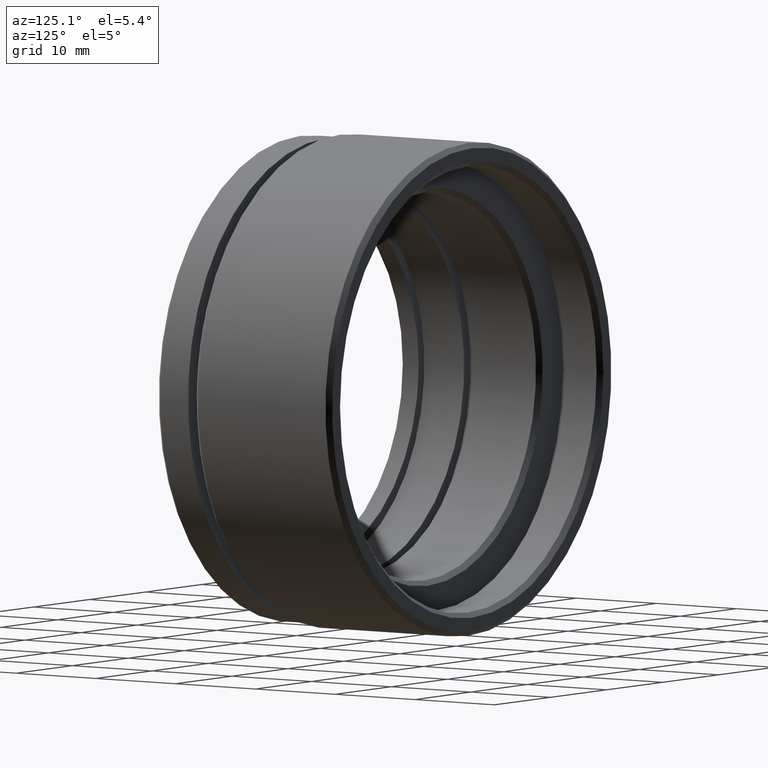
[diagram: clean part render]
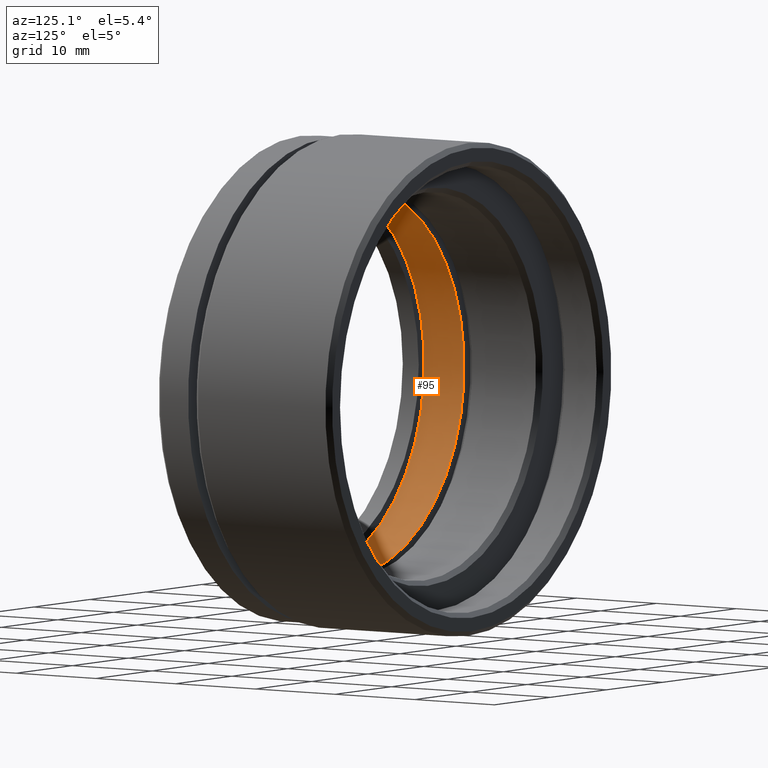
[diagram: same view with one face highlighted and labeled with its STEP entity id]
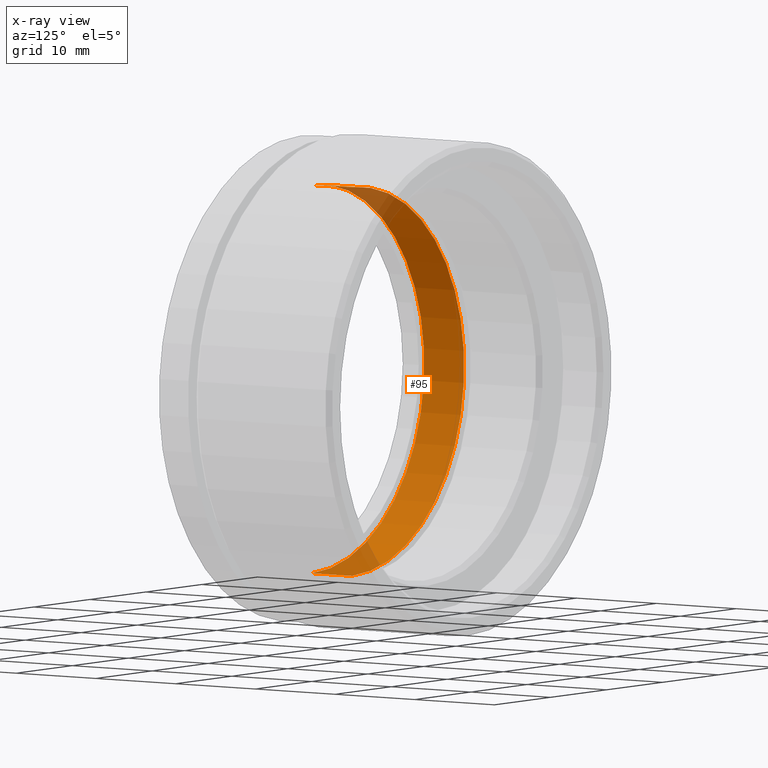
[diagram: x-ray of the same camera — body ghosted, the highlighted face saturated]
A machine part, auxiliary view. The second image highlights one B-rep face of the part: STEP entity #95.
The next image is the same camera in x-ray: the body ghosted, the highlighted face saturated — about 12% of this face is hidden behind the body in this view.
In plain terms, the highlighted cylindrical surface (partial cylindrical patch) has radius 20 mm, axis along (-0, -1, -0).
Its self-contained STEP definition (entity closure, byte-faithful):
#2 = CARTESIAN_POINT ( 'NONE',  ( 2.449293598294706500E-015, 0.0000000000000000000, 20.00000000000000000 ) ) ;
#50 = CARTESIAN_POINT ( 'NONE',  ( 0.0000000000000000000, 0.0000000000000000000, -20.00000000000000000 ) ) ;
#55 = CIRCLE ( 'NONE', #450, 20.00000000000000000 ) ;
#63 = ORIENTED_EDGE ( 'NONE', *, *, #299, .F. ) ;
#88 = CARTESIAN_POINT ( 'NONE',  ( 0.0000000000000000000, 2.000000000000000000, -20.00000000000000000 ) ) ;
#95 = ADVANCED_FACE ( 'NONE', ( #838 ), #142, .F. ) ;
#127 = EDGE_CURVE ( 'NONE', #537, #143, #1009, .T. ) ;
#142 = CYLINDRICAL_SURFACE ( 'NONE', #255, 20.00000000000000000 ) ;
#143 = VERTEX_POINT ( 'NONE', #588 ) ;
#184 = LINE ( 'NONE', #50, #1055 ) ;
#235 = AXIS2_PLACEMENT_3D ( 'NONE', #593, #246, #502 ) ;
#246 = DIRECTION ( 'NONE',  ( -0.0000000000000000000, -1.000000000000000000, -0.0000000000000000000 ) ) ;
#254 = VERTEX_POINT ( 'NONE', #948 ) ;
#255 = AXIS2_PLACEMENT_3D ( 'NONE', #857, #936, #320 ) ;
#299 = EDGE_CURVE ( 'NONE', #143, #968, #184, .T. ) ;
#320 = DIRECTION ( 'NONE',  ( 0.0000000000000000000, 0.0000000000000000000, -1.000000000000000000 ) ) ;
#371 = DIRECTION ( 'NONE',  ( -0.0000000000000000000, -1.000000000000000000, -0.0000000000000000000 ) ) ;
#374 = ORIENTED_EDGE ( 'NONE', *, *, #821, .T. ) ;
#450 = AXIS2_PLACEMENT_3D ( 'NONE', #755, #603, #1068 ) ;
#477 = EDGE_CURVE ( 'NONE', #254, #968, #55, .T. ) ;
#502 = DIRECTION ( 'NONE',  ( 0.0000000000000000000, 0.0000000000000000000, -1.000000000000000000 ) ) ;
#537 = VERTEX_POINT ( 'NONE', #1072 ) ;
#564 = ORIENTED_EDGE ( 'NONE', *, *, #127, .F. ) ;
#588 = CARTESIAN_POINT ( 'NONE',  ( 0.0000000000000000000, 7.000000000000000000, -20.00000000000000000 ) ) ;
#593 = CARTESIAN_POINT ( 'NONE',  ( 0.0000000000000000000, 7.000000000000000000, 0.0000000000000000000 ) ) ;
#603 = DIRECTION ( 'NONE',  ( -0.0000000000000000000, -1.000000000000000000, -0.0000000000000000000 ) ) ;
#616 = ORIENTED_EDGE ( 'NONE', *, *, #477, .T. ) ;
#622 = DIRECTION ( 'NONE',  ( -0.0000000000000000000, -1.000000000000000000, -0.0000000000000000000 ) ) ;
#736 = VECTOR ( 'NONE', #371, 1000.000000000000000 ) ;
#752 = EDGE_LOOP ( 'NONE', ( #564, #374, #616, #63 ) ) ;
#755 = CARTESIAN_POINT ( 'NONE',  ( 0.0000000000000000000, 2.000000000000000000, 0.0000000000000000000 ) ) ;
#821 = EDGE_CURVE ( 'NONE', #537, #254, #960, .T. ) ;
#838 = FACE_OUTER_BOUND ( 'NONE', #752, .T. ) ;
#857 = CARTESIAN_POINT ( 'NONE',  ( 0.0000000000000000000, 0.0000000000000000000, 0.0000000000000000000 ) ) ;
#936 = DIRECTION ( 'NONE',  ( -0.0000000000000000000, -1.000000000000000000, -0.0000000000000000000 ) ) ;
#948 = CARTESIAN_POINT ( 'NONE',  ( 2.449293598294706500E-015, 2.000000000000000000, 20.00000000000000000 ) ) ;
#960 = LINE ( 'NONE', #2, #736 ) ;
#968 = VERTEX_POINT ( 'NONE', #88 ) ;
#1009 = CIRCLE ( 'NONE', #235, 20.00000000000000000 ) ;
#1055 = VECTOR ( 'NONE', #622, 1000.000000000000000 ) ;
#1068 = DIRECTION ( 'NONE',  ( 0.0000000000000000000, 0.0000000000000000000, -1.000000000000000000 ) ) ;
#1072 = CARTESIAN_POINT ( 'NONE',  ( 2.449293598294706500E-015, 7.000000000000000000, 20.00000000000000000 ) ) ;